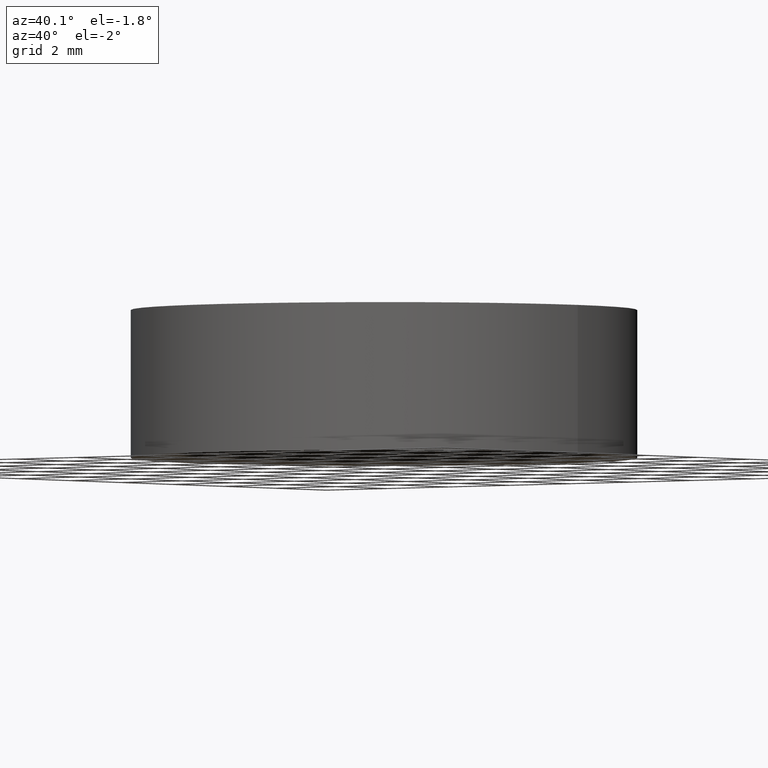
[diagram: clean part render]
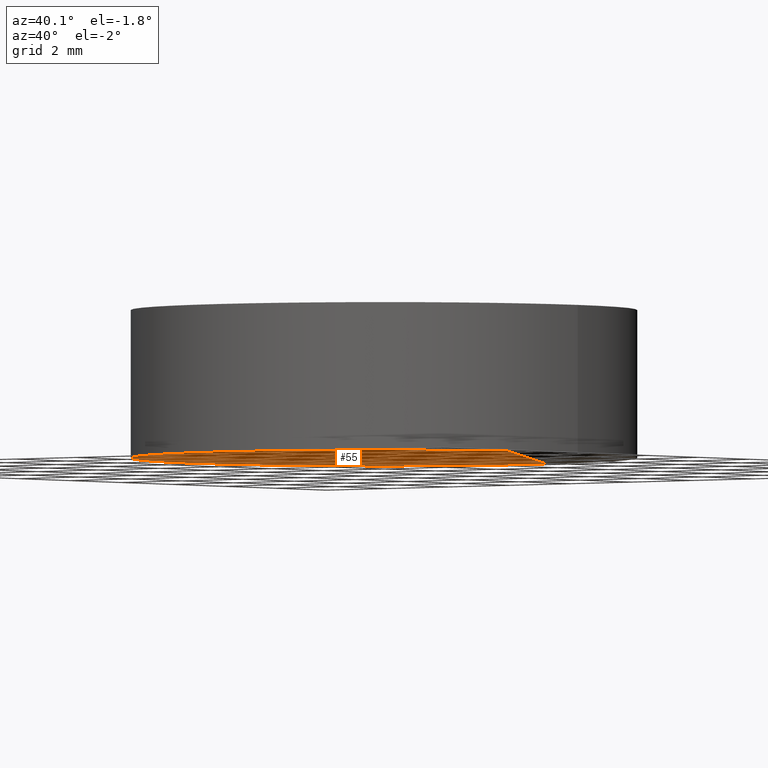
[diagram: same view with one face highlighted and labeled with its STEP entity id]
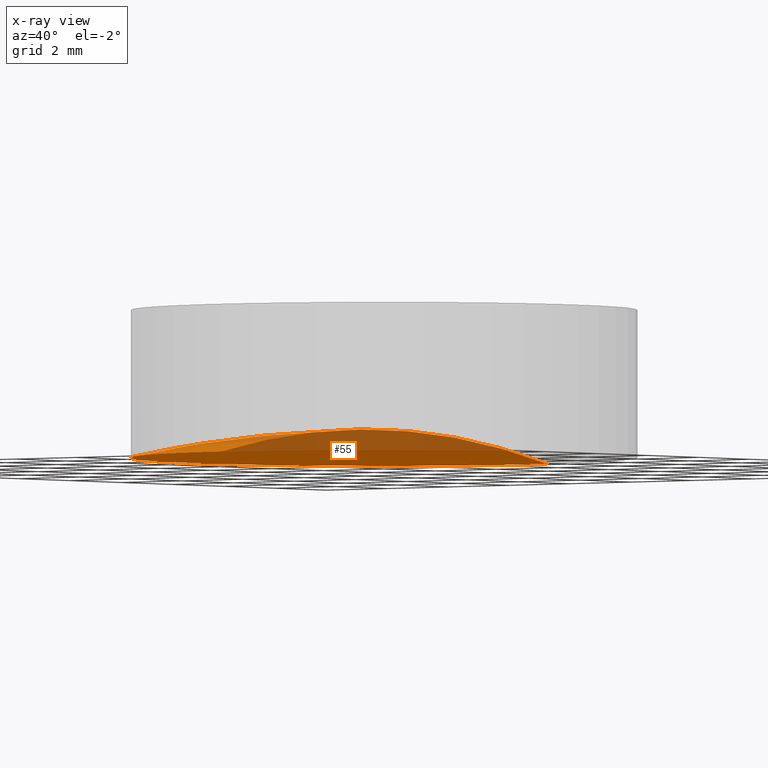
[diagram: x-ray of the same camera — body ghosted, the highlighted face saturated]
A machine part, auxiliary view. The second image highlights one B-rep face of the part: STEP entity #55.
The next image is the same camera in x-ray: the body ghosted, the highlighted face saturated — about 42% of this face is hidden behind the body in this view.
In plain terms, the highlighted face is a freeform B-spline surface patch.
Its self-contained STEP definition (entity closure, byte-faithful):
#5 = CARTESIAN_POINT ( 'NONE',  ( -6.349999999999999600, 1.998896044546239400E-015, -0.7055000044287750300 ) ) ;
#6 = AXIS2_PLACEMENT_3D ( 'NONE', #239, #60, #262 ) ;
#27 = AXIS2_PLACEMENT_3D ( 'NONE', #267, #288, #38 ) ;
#32 = CARTESIAN_POINT ( 'NONE',  ( -2.097568141156078300, -6.424929541777815200, -0.7224623481029369700 ) ) ;
#38 = DIRECTION ( 'NONE',  ( 1.000000000000000000, 0.0000000000000000000, 0.0000000000000000000 ) ) ;
#41 = EDGE_LOOP ( 'NONE', ( #77, #109, #178 ) ) ;
#52 = CIRCLE ( 'NONE', #27, 6.349999999999999600 ) ;
#55 = ADVANCED_FACE ( 'NONE', ( #260 ), #241, .F. ) ;
#60 = DIRECTION ( 'NONE',  ( 0.0000000000000000000, 0.0000000000000000000, 1.000000000000000000 ) ) ;
#72 = CIRCLE ( 'NONE', #120, 28.92999999999999600 ) ;
#77 = ORIENTED_EDGE ( 'NONE', *, *, #172, .F. ) ;
#78 = CARTESIAN_POINT ( 'NONE',  ( -1.040834085586084400E-014, -2.177902016982212500, 0.2448979704595609700 ) ) ;
#82 = CARTESIAN_POINT ( 'NONE',  ( -4.325579220855163800, -2.177902016982213000, 0.003903626985696033800 ) ) ;
#102 = CARTESIAN_POINT ( 'NONE',  ( -4.182154770929388500, 6.424929541777819600, -0.9554659741761513100 ) ) ;
#103 = CARTESIAN_POINT ( 'NONE',  ( -1.040834085586084300E-014, -6.424929541777815200, -0.7224623481029364100 ) ) ;
#109 = ORIENTED_EDGE ( 'NONE', *, *, #221, .T. ) ;
#112 = EDGE_CURVE ( 'NONE', #125, #156, #286, .T. ) ;
#115 = DIRECTION ( 'NONE',  ( 0.0000000000000000000, 1.000000000000000000, -2.398511546459463900E-016 ) ) ;
#120 = AXIS2_PLACEMENT_3D ( 'NONE', #248, #249, #115 ) ;
#124 = CARTESIAN_POINT ( 'NONE',  ( -6.441541557281146500, 2.177902016982216500, -0.4751021096095700000 ) ) ;
#125 = VERTEX_POINT ( 'NONE', #5 ) ;
#156 = VERTEX_POINT ( 'NONE', #258 ) ;
#167 = CARTESIAN_POINT ( 'NONE',  ( -9.540979117872439000E-015, 2.177902016982217000, 0.2448979704595649100 ) ) ;
#171 = CARTESIAN_POINT ( 'NONE',  ( -4.325579220855163800, 2.177902016982217000, 0.003903626985700152900 ) ) ;
#172 = EDGE_CURVE ( 'NONE', #235, #125, #52, .T. ) ;
#173 = CARTESIAN_POINT ( 'NONE',  ( -2.097568141156077800, 6.424929541777819600, -0.7224623481029333000 ) ) ;
#178 = ORIENTED_EDGE ( 'NONE', *, *, #112, .F. ) ;
#192 = CARTESIAN_POINT ( 'NONE',  ( -2.169502962630962500, -2.177902016982212500, 0.2448979704595604400 ) ) ;
#216 = CARTESIAN_POINT ( 'NONE',  ( -9.540979117872439000E-015, 6.424929541777819600, -0.7224623481029329700 ) ) ;
#219 = CARTESIAN_POINT ( 'NONE',  ( -6.441541557281146500, -2.177902016982213000, -0.4751021096095740500 ) ) ;
#221 = EDGE_CURVE ( 'NONE', #235, #156, #72, .T. ) ;
#228 = CARTESIAN_POINT ( 'NONE',  ( -3.552713678800500100E-015, 6.349999999999989000, -0.7055000044287748100 ) ) ;
#235 = VERTEX_POINT ( 'NONE', #228 ) ;
#236 = CARTESIAN_POINT ( 'NONE',  ( -6.227957547520617300, 6.424929541777819600, -1.418589182496078600 ) ) ;
#237 = CARTESIAN_POINT ( 'NONE',  ( -6.227957547520617300, -6.424929541777815200, -1.418589182496082100 ) ) ;
#238 = CARTESIAN_POINT ( 'NONE',  ( -4.182154770929388500, -6.424929541777815200, -0.9554659741761548600 ) ) ;
#239 = CARTESIAN_POINT ( 'NONE',  ( 2.498001805406600200E-016, 1.221245327087670000E-015, -0.7055000044287750300 ) ) ;
#241 =( BOUNDED_SURFACE ( )  B_SPLINE_SURFACE ( 3, 3, ( 
 ( #236, #102, #173, #216 ),
 ( #124, #171, #281, #167 ),
 ( #219, #82, #192, #78 ),
 ( #237, #238, #32, #103 ) ),
 .UNSPECIFIED., .F., .F., .F. ) 
 B_SPLINE_SURFACE_WITH_KNOTS ( ( 4, 4 ),
 ( 4, 4 ),
 ( 0.0000000000000000000, 1.000000000000000000 ),
 ( 0.0000000000000000000, 1.000000000000000000 ),
 .UNSPECIFIED. ) 
 GEOMETRIC_REPRESENTATION_ITEM ( )  RATIONAL_B_SPLINE_SURFACE ( (
 ( 1.000000000000000000, 0.9958741073760455400, 0.9958741073760455400, 1.000000000000000000),
 ( 0.9833514840856564200, 0.9792942814507127300, 0.9792942814507127300, 0.9833514840856564200),
 ( 0.9833514840856564200, 0.9792942814507127300, 0.9792942814507127300, 0.9833514840856564200),
 ( 1.000000000000000000, 0.9958741073760455400, 0.9958741073760455400, 1.000000000000000000) ) ) 
 REPRESENTATION_ITEM ( '' )  SURFACE ( )  );
#248 = CARTESIAN_POINT ( 'NONE',  ( -3.552713678800500100E-015, 0.0000000000000000000, -28.93000000000000000 ) ) ;
#249 = DIRECTION ( 'NONE',  ( 1.000000000000000000, 0.0000000000000000000, 0.0000000000000000000 ) ) ;
#258 = CARTESIAN_POINT ( 'NONE',  ( -3.552713678800500100E-015, -6.349999999999987200, -0.7055000044287748100 ) ) ;
#260 = FACE_OUTER_BOUND ( 'NONE', #41, .T. ) ;
#262 = DIRECTION ( 'NONE',  ( 1.000000000000000000, 0.0000000000000000000, 0.0000000000000000000 ) ) ;
#267 = CARTESIAN_POINT ( 'NONE',  ( 2.498001805406600200E-016, 1.221245327087670000E-015, -0.7055000044287750300 ) ) ;
#281 = CARTESIAN_POINT ( 'NONE',  ( -2.169502962630962100, 2.177902016982217400, 0.2448979704595644600 ) ) ;
#286 = CIRCLE ( 'NONE', #6, 6.349999999999999600 ) ;
#288 = DIRECTION ( 'NONE',  ( 0.0000000000000000000, 0.0000000000000000000, 1.000000000000000000 ) ) ;